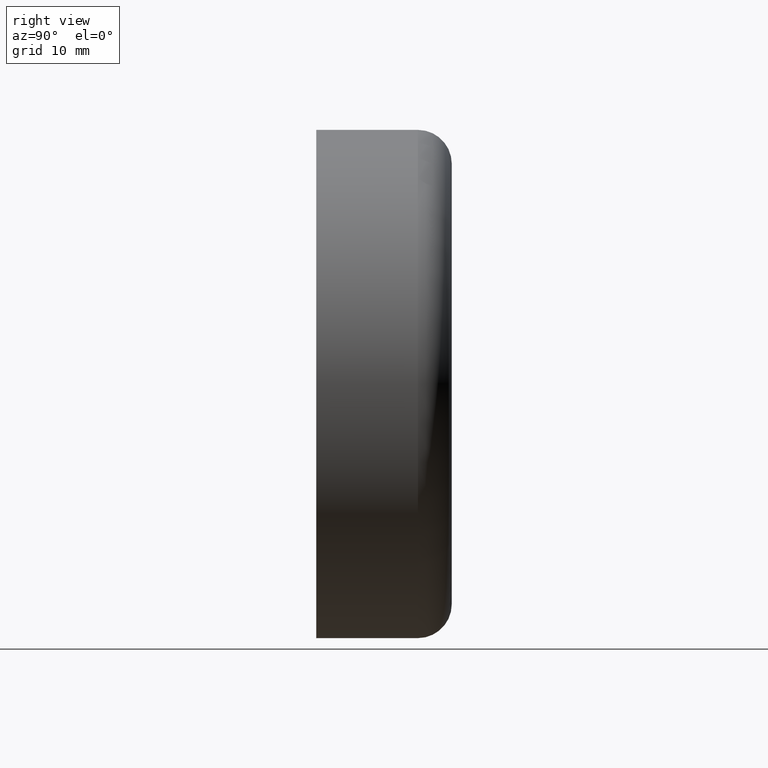
[diagram: clean part render]
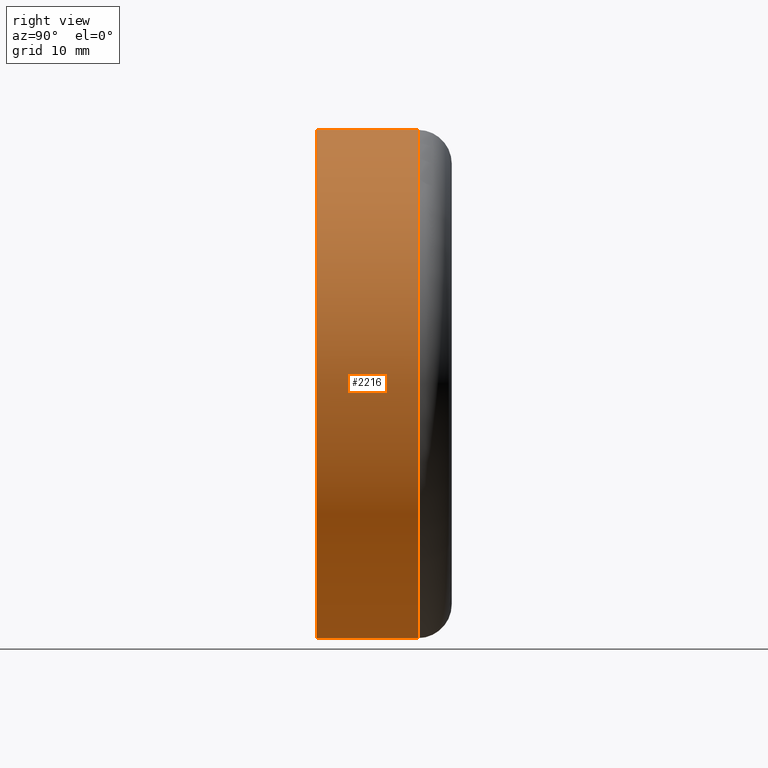
[diagram: same view with one face highlighted and labeled with its STEP entity id]
A machine part, right view. The second image highlights one B-rep face of the part: STEP entity #2216.
In plain terms, the highlighted cylindrical surface (partial cylindrical patch) has radius 22.5 mm, axis along (-0, -1, -0).
Its self-contained STEP definition (entity closure, byte-faithful):
#763 = DIRECTION ( 'NONE',  ( 0.000000000000000000, 0.000000000000000000, -1.000000000000000000 ) ) ;
#884 = CARTESIAN_POINT ( 'NONE',  ( 0.000000000000000000, 0.000000000000000000, 0.000000000000000000 ) ) ;
#1296 = CARTESIAN_POINT ( 'NONE',  ( 2.755455298081545172E-15, 0.000000000000000000, 22.50000000000000355 ) ) ;
#1670 = VERTEX_POINT ( 'NONE', #10815 ) ;
#2212 = DIRECTION ( 'NONE',  ( -0.000000000000000000, -1.000000000000000000, -0.000000000000000000 ) ) ;
#2216 = ADVANCED_FACE ( 'NONE', ( #16942 ), #3717, .T. ) ;
#2831 = DIRECTION ( 'NONE',  ( 0.000000000000000000, 0.000000000000000000, -1.000000000000000000 ) ) ;
#2884 = CARTESIAN_POINT ( 'NONE',  ( 0.000000000000000000, 9.000000000000001776, 0.000000000000000000 ) ) ;
#2890 = AXIS2_PLACEMENT_3D ( 'NONE', #884, #2212, #763 ) ;
#3205 = CARTESIAN_POINT ( 'NONE',  ( 0.000000000000000000, 0.000000000000000000, -22.50000000000000355 ) ) ;
#3442 = EDGE_CURVE ( 'NONE', #16257, #12911, #11794, .T. ) ;
#3717 = CYLINDRICAL_SURFACE ( 'NONE', #2890, 22.50000000000000355 ) ;
#3902 = CARTESIAN_POINT ( 'NONE',  ( 0.000000000000000000, 0.000000000000000000, -22.50000000000000711 ) ) ;
#4879 = VERTEX_POINT ( 'NONE', #3902 ) ;
#5029 = ORIENTED_EDGE ( 'NONE', *, *, #12835, .F. ) ;
#5091 = AXIS2_PLACEMENT_3D ( 'NONE', #15450, #8851, #12811 ) ;
#5433 = CIRCLE ( 'NONE', #5091, 22.50000000000000711 ) ;
#7025 = EDGE_CURVE ( 'NONE', #12911, #1670, #7799, .T. ) ;
#7799 = LINE ( 'NONE', #1296, #8829 ) ;
#8452 = ORIENTED_EDGE ( 'NONE', *, *, #3442, .T. ) ;
#8829 = VECTOR ( 'NONE', #12053, 1000.000000000000000 ) ;
#8851 = DIRECTION ( 'NONE',  ( -0.000000000000000000, -1.000000000000000000, -0.000000000000000000 ) ) ;
#8908 = CARTESIAN_POINT ( 'NONE',  ( 2.755455298081544778E-15, 9.000000000000001776, 22.50000000000000000 ) ) ;
#9139 = EDGE_CURVE ( 'NONE', #16257, #4879, #10431, .T. ) ;
#9390 = VECTOR ( 'NONE', #15227, 1000.000000000000000 ) ;
#10301 = CARTESIAN_POINT ( 'NONE',  ( 0.000000000000000000, 9.000000000000001776, -22.50000000000000000 ) ) ;
#10431 = LINE ( 'NONE', #3205, #9390 ) ;
#10815 = CARTESIAN_POINT ( 'NONE',  ( 2.755455298081545961E-15, 0.000000000000000000, 22.50000000000000711 ) ) ;
#10863 = DIRECTION ( 'NONE',  ( -0.000000000000000000, -1.000000000000000000, -0.000000000000000000 ) ) ;
#10994 = ORIENTED_EDGE ( 'NONE', *, *, #9139, .F. ) ;
#11539 = EDGE_LOOP ( 'NONE', ( #8452, #14749, #5029, #10994 ) ) ;
#11794 = CIRCLE ( 'NONE', #15932, 22.50000000000000000 ) ;
#12053 = DIRECTION ( 'NONE',  ( -0.000000000000000000, -1.000000000000000000, -0.000000000000000000 ) ) ;
#12811 = DIRECTION ( 'NONE',  ( 0.000000000000000000, 0.000000000000000000, -1.000000000000000000 ) ) ;
#12835 = EDGE_CURVE ( 'NONE', #4879, #1670, #5433, .T. ) ;
#12911 = VERTEX_POINT ( 'NONE', #8908 ) ;
#14749 = ORIENTED_EDGE ( 'NONE', *, *, #7025, .T. ) ;
#15227 = DIRECTION ( 'NONE',  ( -0.000000000000000000, -1.000000000000000000, -0.000000000000000000 ) ) ;
#15450 = CARTESIAN_POINT ( 'NONE',  ( 0.000000000000000000, 0.000000000000000000, 0.000000000000000000 ) ) ;
#15932 = AXIS2_PLACEMENT_3D ( 'NONE', #2884, #10863, #2831 ) ;
#16257 = VERTEX_POINT ( 'NONE', #10301 ) ;
#16942 = FACE_OUTER_BOUND ( 'NONE', #11539, .T. ) ;